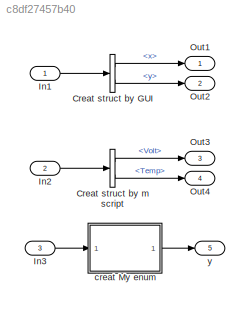
MODEL slx_c8df27457b40
KIND model
CONFIG AbsTol = auto
CONFIG EnableMultiTasking = off
CONFIG FixedStep = auto
CONFIG MaxStep = auto
CONFIG MinStep = auto
CONFIG RelTol = 1e-3
CONFIG SampleTimeConstraint = Unconstrained
CONFIG SolverName = VariableStepAuto
CONFIG StartTime = 0.0
CONFIG StopTime = 10.0
BLOCK [BusSelector] Creat struct by GUI
  OutputSignals = x,y
  Ports = [1, 2]
BLOCK [BusSelector] Creat struct by m script
  OutputSignals = Volt,Temp
  Ports = [1, 2]
BLOCK [Inport] In1
  BusOutputAsStruct = on
  OutDataTypeStr = Bus: MYstr
BLOCK [Inport] In2
  BusOutputAsStruct = on
  OutDataTypeStr = Bus: Fault
  Port = 2
BLOCK [Inport] In3
  OutDataTypeStr = Enum: enum1
  Port = 3
BLOCK [Outport] Out1
BLOCK [Outport] Out2
  Port = 2
BLOCK [Outport] Out3
  Port = 3
BLOCK [Outport] Out4
  Port = 4
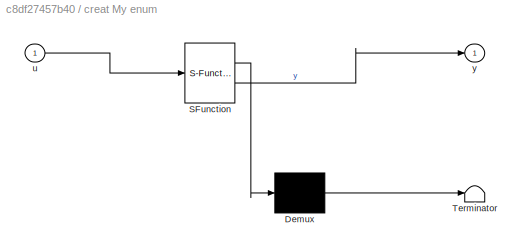
BLOCK [SubSystem] creat My enum
  ErrorFcn = Stateflow.Translate.translate
  PermitHierarchicalResolution = ExplicitOnly
  Ports = [1, 1]
  RequestExecContextInheritance = off
  SFBlockType = MATLAB Function
  TreatAsAtomicUnit = on
BLOCK [Demux] creat My enum/ Demux 
  Outputs = 1
  Ports = [1, 1]
BLOCK [S-Function] creat My enum/ SFunction 
  EnableBusSupport = on
  FunctionName = sf_sfun
  PortCounts = [1 2]
  Ports = [1, 2]
  SFcnIsStateOwnerBlock = off
  SFunctionDeploymentMode = off
  Tag = Stateflow S-Function 2
BLOCK [Terminator] creat My enum/ Terminator 
BLOCK [Inport] creat My enum/u
BLOCK [Outport] creat My enum/y
BLOCK [Outport] y
  Port = 5
LINE Creat struct by GUI:1 -> Out1:1
LINE Creat struct by GUI:2 -> Out2:1
LINE Creat struct by m script:1 -> Out3:1
LINE Creat struct by m script:2 -> Out4:1
LINE In1:1 -> Creat struct by GUI:1
LINE In2:1 -> Creat struct by m script:1
LINE In3:1 -> creat My enum:1
LINE creat My enum:1 -> y:1
CHART creat My enum states=1 transitions=1
  STATE_LABEL 'eML_blk_kernel()'
  STATE_LABEL 'SCRIPT:\nfunction y = fcn(u)\n\ny = u;\n'
CHART  states=0 transitions=0
